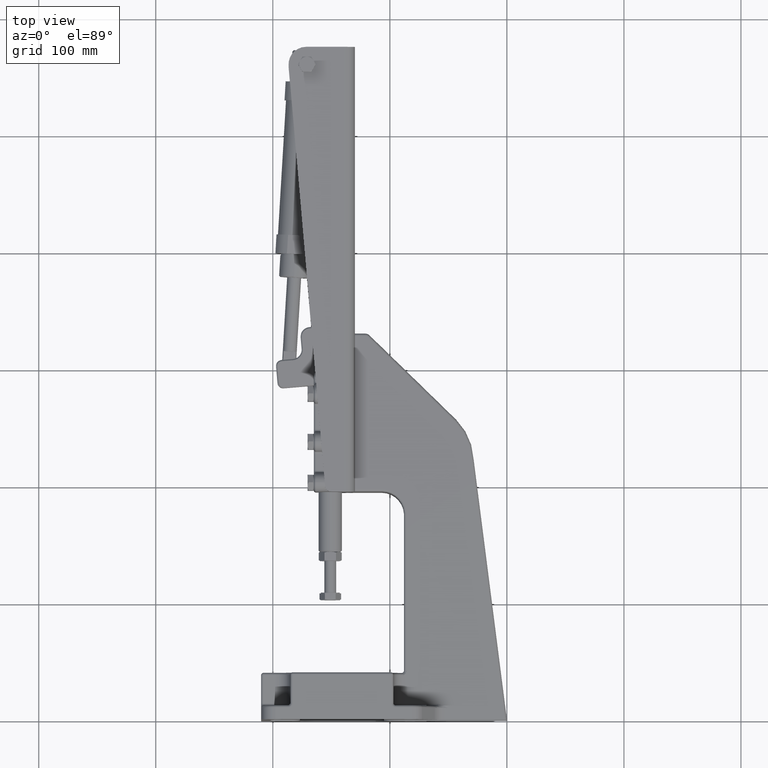
[diagram: clean part render]
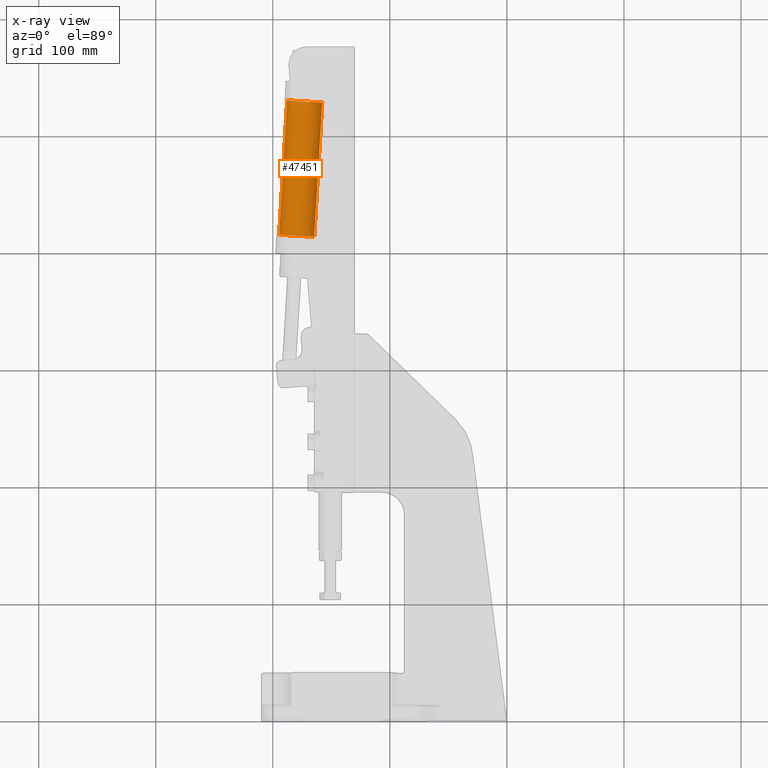
[diagram: x-ray — body ghosted, one internal face saturated and labeled with its STEP entity id]
A machine part, top view, then the same camera in x-ray: the body is ghosted and one INTERNAL B-rep face — a face not visible from any outside direction — is saturated and labeled: STEP entity #47451.
In plain terms, the highlighted cylindrical surface (edge-blend (fillet) strip) has radius 15 mm, axis along (-0.0596, -0.9982, 0).
Its self-contained STEP definition (entity closure, byte-faithful):
#2566 = DIRECTION ( 'NONE',  ( -0.9987108075517890900, 0.05076143102054316000, 4.267495977119466400E-010 ) ) ;
#3643 = CARTESIAN_POINT ( 'NONE',  ( 267.3004021700402300, 54.53490147024093200, -1.062446227316415000 ) ) ;
#4849 = AXIS2_PLACEMENT_3D ( 'NONE', #36765, #11843, #41026 ) ;
#7543 = VERTEX_POINT ( 'NONE', #3643 ) ;
#8957 = VECTOR ( 'NONE', #21156, 1000.000000000000100 ) ;
#9387 = EDGE_CURVE ( 'NONE', #26145, #51301, #53118, .T. ) ;
#10448 = CYLINDRICAL_SURFACE ( 'NONE', #16888, 15.00000000000000400 ) ;
#10814 = CARTESIAN_POINT ( 'NONE',  ( 265.7795277685678500, 24.61230725268617200, 0.4624460136319330000 ) ) ;
#11843 = DIRECTION ( 'NONE',  ( 0.9987108075517890900, -0.05076143102054316000, -4.267495977119466400E-010 ) ) ;
#12270 = EDGE_LOOP ( 'NONE', ( #28985, #30011, #39825, #19552 ) ) ;
#16888 = AXIS2_PLACEMENT_3D ( 'NONE', #25168, #50214, #46031 ) ;
#18342 = CARTESIAN_POINT ( 'NONE',  ( 152.4486593015844600, 60.37246603760340200, -1.062446178240211500 ) ) ;
#19552 = ORIENTED_EDGE ( 'NONE', *, *, #45131, .F. ) ;
#20123 = EDGE_CURVE ( 'NONE', #7543, #26145, #31074, .T. ) ;
#20659 = CIRCLE ( 'NONE', #4849, 15.00000000000000400 ) ;
#21156 = DIRECTION ( 'NONE',  ( -0.9987108075517889800, 0.05076143102054316000, 4.267495977119465900E-010 ) ) ;
#23382 = DIRECTION ( 'NONE',  ( -0.9987108075517889800, 0.05076143102054316000, 4.267495977119465900E-010 ) ) ;
#25168 = CARTESIAN_POINT ( 'NONE',  ( 266.5399649693040400, 39.57360436146355200, -0.3000001068422419300 ) ) ;
#26027 = LINE ( 'NONE', #10814, #46968 ) ;
#26145 = VERTEX_POINT ( 'NONE', #18342 ) ;
#27517 = CARTESIAN_POINT ( 'NONE',  ( 151.6882221008482900, 45.41116892882601500, -0.3000000577660381600 ) ) ;
#28722 = CARTESIAN_POINT ( 'NONE',  ( 265.7795277685678500, 24.61230725268617200, 0.4624460136319330000 ) ) ;
#28985 = ORIENTED_EDGE ( 'NONE', *, *, #41429, .T. ) ;
#30011 = ORIENTED_EDGE ( 'NONE', *, *, #20123, .T. ) ;
#31074 = LINE ( 'NONE', #46207, #8957 ) ;
#31640 = DIRECTION ( 'NONE',  ( -0.05069581338241386400, -0.9974198072518252200, 0.05082974136494498200 ) ) ;
#32572 = FACE_OUTER_BOUND ( 'NONE', #12270, .T. ) ;
#34108 = AXIS2_PLACEMENT_3D ( 'NONE', #27517, #2566, #31640 ) ;
#36765 = CARTESIAN_POINT ( 'NONE',  ( 266.5399649693040400, 39.57360436146355200, -0.3000001068422419300 ) ) ;
#39825 = ORIENTED_EDGE ( 'NONE', *, *, #9387, .T. ) ;
#41026 = DIRECTION ( 'NONE',  ( -0.05069581338241386400, -0.9974198072518252200, 0.05082974136494498200 ) ) ;
#41429 = EDGE_CURVE ( 'NONE', #48560, #7543, #20659, .T. ) ;
#45131 = EDGE_CURVE ( 'NONE', #48560, #51301, #26027, .T. ) ;
#46031 = DIRECTION ( 'NONE',  ( -0.05069581338241386400, -0.9974198072518252200, 0.05082974136494498200 ) ) ;
#46207 = CARTESIAN_POINT ( 'NONE',  ( 267.3004021700402300, 54.53490147024093200, -1.062446227316415000 ) ) ;
#46630 = CARTESIAN_POINT ( 'NONE',  ( 150.9277849001120700, 30.44987182004863500, 0.4624460627081367600 ) ) ;
#46968 = VECTOR ( 'NONE', #23382, 1000.000000000000100 ) ;
#47451 = ADVANCED_FACE ( 'NONE', ( #32572 ), #10448, .F. ) ;
#48560 = VERTEX_POINT ( 'NONE', #28722 ) ;
#50214 = DIRECTION ( 'NONE',  ( -0.9987108075517890900, 0.05076143102054316000, 4.267495977119466400E-010 ) ) ;
#51301 = VERTEX_POINT ( 'NONE', #46630 ) ;
#53118 = CIRCLE ( 'NONE', #34108, 15.00000000000000400 ) ;